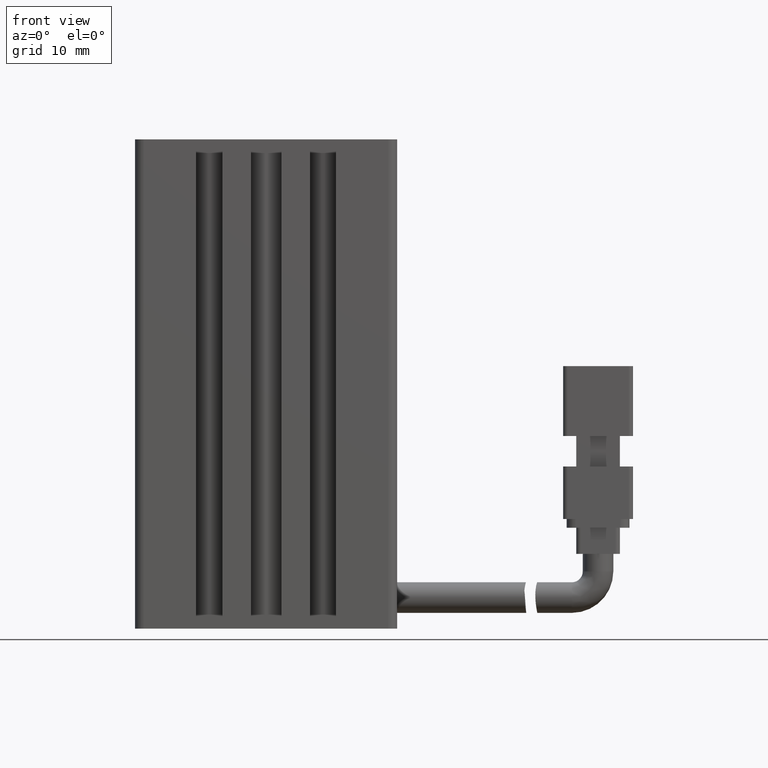
[diagram: clean part render]
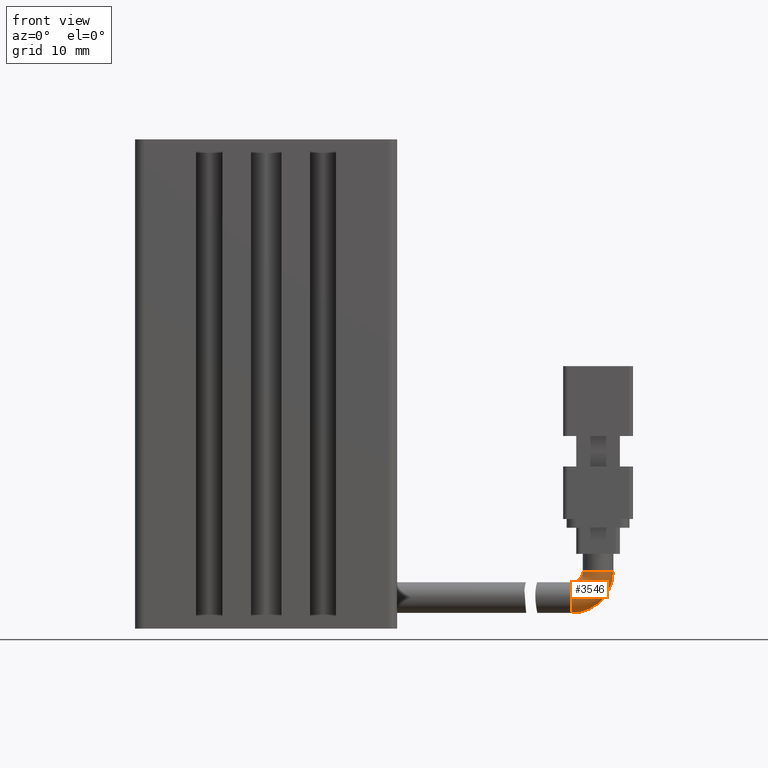
[diagram: same view with one face highlighted and labeled with its STEP entity id]
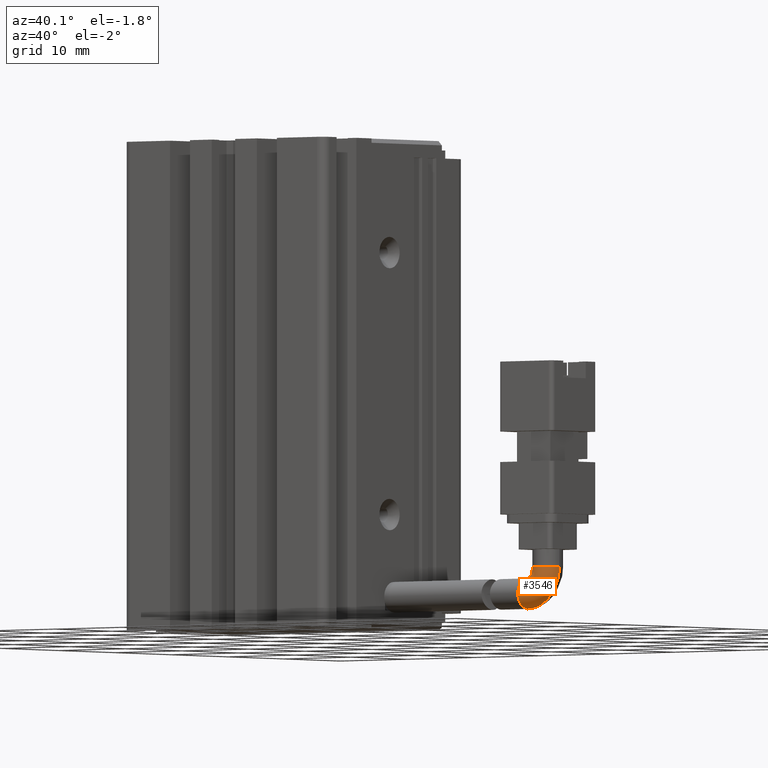
[diagram: same view with one face highlighted and labeled with its STEP entity id]
A machine part, front view. The second image highlights one B-rep face of the part: STEP entity #3546.
A second angle (auxiliary view) of the same face is appended — the face is thin or edge-on in the first view.
In plain terms, the highlighted face is a freeform B-spline surface patch.
Its self-contained STEP definition (entity closure, byte-faithful):
#175 = EDGE_LOOP ( 'NONE', ( #14703, #15325, #15442, #15834 ) ) ;
#379 = CIRCLE ( 'NONE', #1524, 4.749999999999976900 ) ;
#443 = VERTEX_POINT ( 'NONE', #4184 ) ;
#1524 = AXIS2_PLACEMENT_3D ( 'NONE', #25126, #13791, #2017 ) ;
#1541 = CARTESIAN_POINT ( 'NONE',  ( 77.17537974683536100, 19.69594479660408500, -137.1822330470336600 ) ) ;
#2017 = DIRECTION ( 'NONE',  ( 0.0000000000000000000, 0.0000000000000000000, -1.000000000000000000 ) ) ;
#2141 =( BOUNDED_SURFACE ( )  B_SPLINE_SURFACE ( 3, 3, ( 
 ( #5533, #22945, #19099, #19022 ),
 ( #17262, #9368, #7653, #7570 ),
 ( #13578, #1541, #25005, #24767 ),
 ( #24707, #24629, #24543, #23164 ) ),
 .UNSPECIFIED., .F., .F., .T. ) 
 B_SPLINE_SURFACE_WITH_KNOTS ( ( 4, 4 ),
 ( 4, 4 ),
 ( 0.0000000000000000000, 1.000000000000000000 ),
 ( 0.0000000000000000000, 1.000000000000000000 ),
 .UNSPECIFIED. ) 
 GEOMETRIC_REPRESENTATION_ITEM ( )  RATIONAL_B_SPLINE_SURFACE ( (
 ( 1.000000000000000000, 0.8047378541243649400, 0.8047378541243649400, 1.000000000000000000),
 ( 0.3333333333333339800, 0.2682459513747888500, 0.2682459513747888500, 0.3333333333333339800),
 ( 0.3333333333333339800, 0.2682459513747888500, 0.2682459513747888500, 0.3333333333333339800),
 ( 1.000000000000000000, 0.8047378541243649400, 0.8047378541243649400, 1.000000000000000000) ) ) 
 REPRESENTATION_ITEM ( '' )  SURFACE ( )  );
#2327 = AXIS2_PLACEMENT_3D ( 'NONE', #17303, #5753, #19235 ) ;
#3546 = ADVANCED_FACE ( 'NONE', ( #23702 ), #2141, .T. ) ;
#3683 = AXIS2_PLACEMENT_3D ( 'NONE', #18722, #7206, #20669 ) ;
#4184 = CARTESIAN_POINT ( 'NONE',  ( 77.17537974683536100, 23.19594479660407800, -136.4499999999999900 ) ) ;
#4297 = AXIS2_PLACEMENT_3D ( 'NONE', #20510, #9006, #22436 ) ;
#5533 = CARTESIAN_POINT ( 'NONE',  ( 80.67537974683534700, 23.19594479660409500, -136.4500000000000200 ) ) ;
#5753 = DIRECTION ( 'NONE',  ( 1.000000000000000000, 3.304235192336770000E-015, 8.579261317967046800E-031 ) ) ;
#5794 = CIRCLE ( 'NONE', #3683, 1.249999999999973400 ) ;
#7206 = DIRECTION ( 'NONE',  ( -3.304235192336770000E-015, 1.000000000000000000, -5.551115123125780200E-017 ) ) ;
#7570 = CARTESIAN_POINT ( 'NONE',  ( 75.92537974683533300, 19.69594479660408500, -141.1999999999999600 ) ) ;
#7653 = CARTESIAN_POINT ( 'NONE',  ( 78.70786532556312000, 19.69594479660409500, -141.1999999999999900 ) ) ;
#7927 = VERTEX_POINT ( 'NONE', #14330 ) ;
#8421 = VERTEX_POINT ( 'NONE', #9933 ) ;
#9006 = DIRECTION ( 'NONE',  ( 2.143131898507857500E-016, 5.551115123125850500E-017, 1.000000000000000000 ) ) ;
#9368 = CARTESIAN_POINT ( 'NONE',  ( 80.67537974683536100, 19.69594479660410300, -139.2324855787278500 ) ) ;
#9933 = CARTESIAN_POINT ( 'NONE',  ( 75.92537974683536100, 23.19594479660407100, -141.1999999999999600 ) ) ;
#12202 = EDGE_CURVE ( 'NONE', #443, #22133, #17858, .T. ) ;
#12233 = EDGE_CURVE ( 'NONE', #443, #7927, #5794, .T. ) ;
#12399 = EDGE_CURVE ( 'NONE', #7927, #8421, #23484, .T. ) ;
#12505 = EDGE_CURVE ( 'NONE', #22133, #8421, #379, .T. ) ;
#13578 = CARTESIAN_POINT ( 'NONE',  ( 77.17537974683537500, 19.69594479660408500, -136.4500000000000200 ) ) ;
#13791 = DIRECTION ( 'NONE',  ( -3.304235192336770000E-015, 1.000000000000000000, -5.551115123125780200E-017 ) ) ;
#14330 = CARTESIAN_POINT ( 'NONE',  ( 75.92537974683536100, 23.19594479660407100, -137.6999999999999600 ) ) ;
#14703 = ORIENTED_EDGE ( 'NONE', *, *, #12202, .F. ) ;
#15325 = ORIENTED_EDGE ( 'NONE', *, *, #12233, .T. ) ;
#15442 = ORIENTED_EDGE ( 'NONE', *, *, #12399, .T. ) ;
#15834 = ORIENTED_EDGE ( 'NONE', *, *, #12505, .F. ) ;
#17262 = CARTESIAN_POINT ( 'NONE',  ( 80.67537974683536100, 19.69594479660410300, -136.4500000000000200 ) ) ;
#17303 = CARTESIAN_POINT ( 'NONE',  ( 75.92537974683536100, 23.19594479660407800, -139.4499999999999600 ) ) ;
#17858 = CIRCLE ( 'NONE', #4297, 1.750000000000001600 ) ;
#18722 = CARTESIAN_POINT ( 'NONE',  ( 75.92537974683536100, 23.19594479660407800, -136.4499999999999900 ) ) ;
#19022 = CARTESIAN_POINT ( 'NONE',  ( 75.92537974683530400, 23.19594479660407800, -141.1999999999999600 ) ) ;
#19099 = CARTESIAN_POINT ( 'NONE',  ( 78.70786532556309100, 23.19594479660408800, -141.1999999999999900 ) ) ;
#19235 = DIRECTION ( 'NONE',  ( 0.0000000000000000000, 3.965082230804126700E-015, -1.000000000000000000 ) ) ;
#19844 = CARTESIAN_POINT ( 'NONE',  ( 80.67537974683534700, 23.19594479660409500, -136.4499999999999900 ) ) ;
#20510 = CARTESIAN_POINT ( 'NONE',  ( 78.92537974683536100, 23.19594479660408800, -136.4499999999999900 ) ) ;
#20669 = DIRECTION ( 'NONE',  ( 0.0000000000000000000, 0.0000000000000000000, -1.000000000000000000 ) ) ;
#22133 = VERTEX_POINT ( 'NONE', #19844 ) ;
#22436 = DIRECTION ( 'NONE',  ( 1.000000000000000000, 3.965082230804126700E-015, 0.0000000000000000000 ) ) ;
#22945 = CARTESIAN_POINT ( 'NONE',  ( 80.67537974683533300, 23.19594479660409500, -139.2324855787277900 ) ) ;
#23164 = CARTESIAN_POINT ( 'NONE',  ( 75.92537974683530400, 23.19594479660407100, -137.6999999999999600 ) ) ;
#23484 = CIRCLE ( 'NONE', #2327, 1.750000000000001600 ) ;
#23702 = FACE_OUTER_BOUND ( 'NONE', #175, .T. ) ;
#24543 = CARTESIAN_POINT ( 'NONE',  ( 76.65761279386892100, 23.19594479660407400, -137.6999999999999900 ) ) ;
#24629 = CARTESIAN_POINT ( 'NONE',  ( 77.17537974683533300, 23.19594479660407800, -137.1822330470336300 ) ) ;
#24707 = CARTESIAN_POINT ( 'NONE',  ( 77.17537974683534700, 23.19594479660407800, -136.4500000000000200 ) ) ;
#24767 = CARTESIAN_POINT ( 'NONE',  ( 75.92537974683533300, 19.69594479660407800, -137.6999999999999900 ) ) ;
#25005 = CARTESIAN_POINT ( 'NONE',  ( 76.65761279386896400, 19.69594479660408100, -137.7000000000000200 ) ) ;
#25126 = CARTESIAN_POINT ( 'NONE',  ( 75.92537974683536100, 23.19594479660407800, -136.4499999999999900 ) ) ;